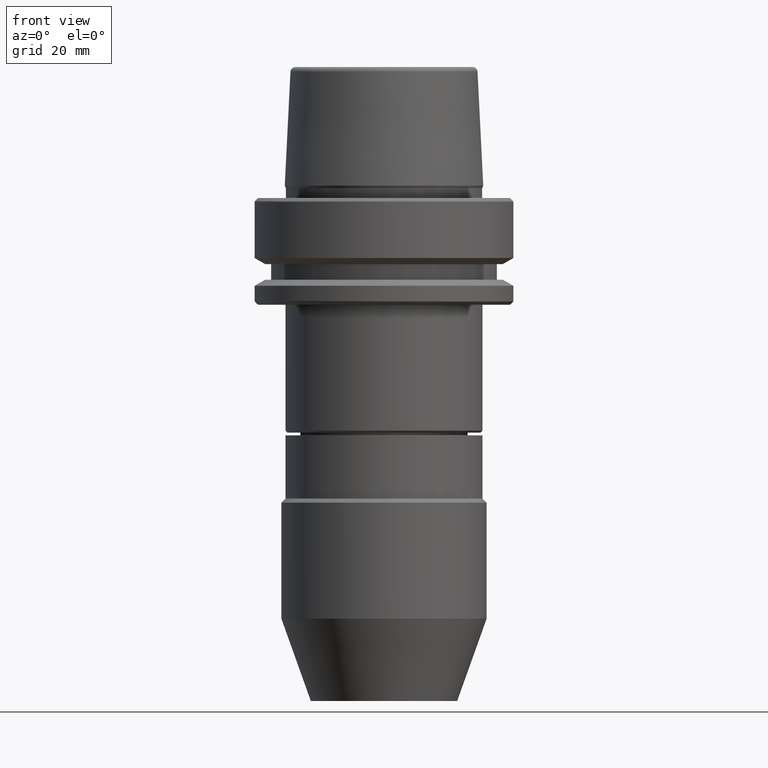
[diagram: clean part render]
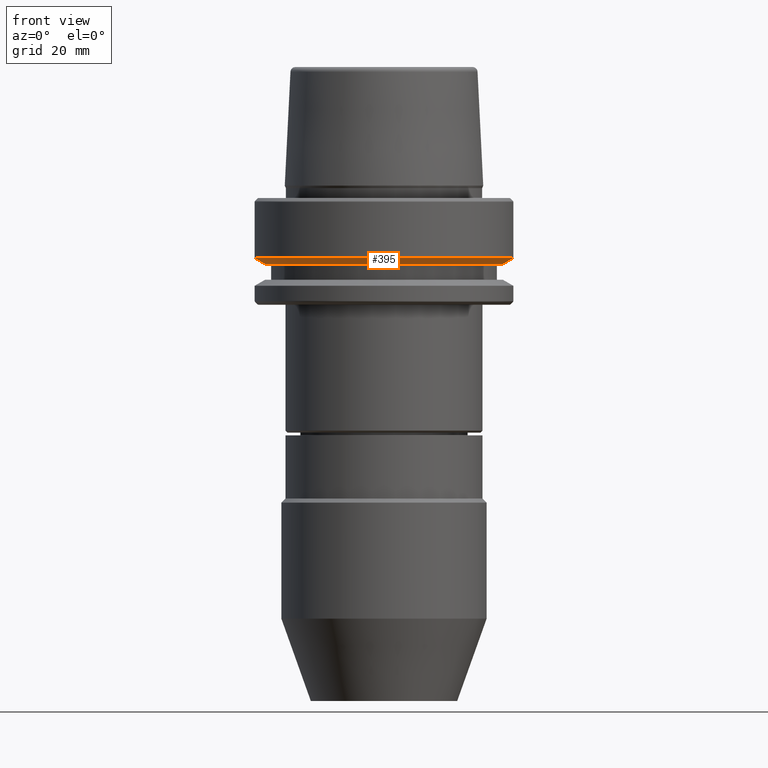
[diagram: same view with one face highlighted and labeled with its STEP entity id]
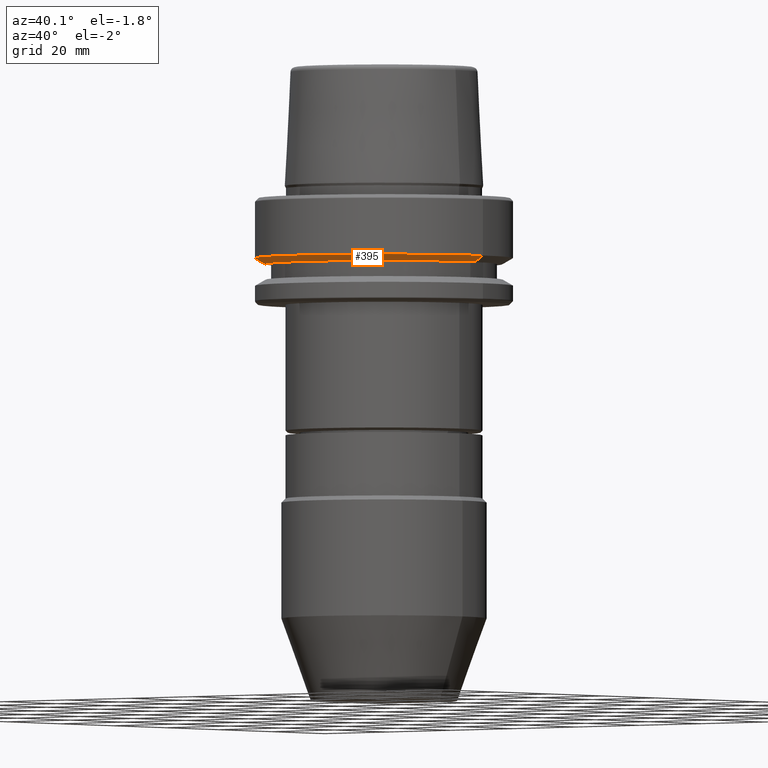
[diagram: same view with one face highlighted and labeled with its STEP entity id]
A machine part, front view. The second image highlights one B-rep face of the part: STEP entity #395.
A second angle (auxiliary view) of the same face is appended — the face is thin or edge-on in the first view.
In plain terms, the highlighted conical surface has half-angle 60 deg.
Its self-contained STEP definition (entity closure, byte-faithful):
#9 = EDGE_CURVE ( 'NONE', #460, #412, #490, .T. ) ;
#26 = ORIENTED_EDGE ( 'NONE', *, *, #1388, .T. ) ;
#30 = CARTESIAN_POINT ( 'NONE',  ( 28.94089653438085100, 0.0000000000000000000, -16.10000000000001600 ) ) ;
#91 = VECTOR ( 'NONE', #1340, 1000.000000000000000 ) ;
#158 = DIRECTION ( 'NONE',  ( -0.0000000000000000000, -0.0000000000000000000, 1.000000000000000000 ) ) ;
#161 = EDGE_CURVE ( 'NONE', #1151, #441, #390, .T. ) ;
#173 = CARTESIAN_POINT ( 'NONE',  ( 0.0000000000000000000, 0.0000000000000000000, -16.10000000000001600 ) ) ;
#288 = DIRECTION ( 'NONE',  ( -0.0000000000000000000, -0.0000000000000000000, 1.000000000000000000 ) ) ;
#307 = AXIS2_PLACEMENT_3D ( 'NONE', #619, #1429, #739 ) ;
#370 = AXIS2_PLACEMENT_3D ( 'NONE', #846, #158, #968 ) ;
#390 = LINE ( 'NONE', #773, #91 ) ;
#395 = ADVANCED_FACE ( 'NONE', ( #556 ), #1195, .T. ) ;
#412 = VERTEX_POINT ( 'NONE', #1167 ) ;
#441 = VERTEX_POINT ( 'NONE', #694 ) ;
#460 = VERTEX_POINT ( 'NONE', #30 ) ;
#490 = LINE ( 'NONE', #1141, #695 ) ;
#556 = FACE_OUTER_BOUND ( 'NONE', #1162, .T. ) ;
#619 = CARTESIAN_POINT ( 'NONE',  ( 0.0000000000000000000, 0.0000000000000000000, -14.62250092524070100 ) ) ;
#644 = DIRECTION ( 'NONE',  ( 1.000000000000000000, 0.0000000000000000000, 0.0000000000000000000 ) ) ;
#694 = CARTESIAN_POINT ( 'NONE',  ( -31.50000000000000000, 3.857637417314162700E-015, -14.62250092524070100 ) ) ;
#695 = VECTOR ( 'NONE', #1130, 1000.000000000000000 ) ;
#739 = DIRECTION ( 'NONE',  ( 1.000000000000000000, 0.0000000000000000000, 0.0000000000000000000 ) ) ;
#773 = CARTESIAN_POINT ( 'NONE',  ( -28.94089653438085100, 3.544237630528423800E-015, -16.10000000000001600 ) ) ;
#787 = ORIENTED_EDGE ( 'NONE', *, *, #9, .T. ) ;
#846 = CARTESIAN_POINT ( 'NONE',  ( 0.0000000000000000000, 0.0000000000000000000, -16.10000000000001600 ) ) ;
#883 = CIRCLE ( 'NONE', #307, 31.50000000000000000 ) ;
#961 = CIRCLE ( 'NONE', #370, 28.94089653438085100 ) ;
#968 = DIRECTION ( 'NONE',  ( 1.000000000000000000, 0.0000000000000000000, 0.0000000000000000000 ) ) ;
#1130 = DIRECTION ( 'NONE',  ( 0.8660254037844389300, 0.0000000000000000000, 0.4999999999999995000 ) ) ;
#1141 = CARTESIAN_POINT ( 'NONE',  ( 28.94089653438085100, 0.0000000000000000000, -16.10000000000001600 ) ) ;
#1151 = VERTEX_POINT ( 'NONE', #1290 ) ;
#1162 = EDGE_LOOP ( 'NONE', ( #1270, #26, #787, #1302 ) ) ;
#1167 = CARTESIAN_POINT ( 'NONE',  ( 31.50000000000000000, 0.0000000000000000000, -14.62250092524070100 ) ) ;
#1192 = EDGE_CURVE ( 'NONE', #441, #412, #883, .T. ) ;
#1195 = CONICAL_SURFACE ( 'NONE', #1438, 28.94089653438085100, 1.047197551196598300 ) ;
#1270 = ORIENTED_EDGE ( 'NONE', *, *, #161, .F. ) ;
#1290 = CARTESIAN_POINT ( 'NONE',  ( -28.94089653438085100, 3.700937523921292900E-015, -16.10000000000001600 ) ) ;
#1302 = ORIENTED_EDGE ( 'NONE', *, *, #1192, .F. ) ;
#1340 = DIRECTION ( 'NONE',  ( -0.8660254037844389300, 1.060575238724907300E-016, 0.4999999999999995000 ) ) ;
#1388 = EDGE_CURVE ( 'NONE', #1151, #460, #961, .T. ) ;
#1429 = DIRECTION ( 'NONE',  ( -0.0000000000000000000, -0.0000000000000000000, 1.000000000000000000 ) ) ;
#1438 = AXIS2_PLACEMENT_3D ( 'NONE', #173, #288, #644 ) ;